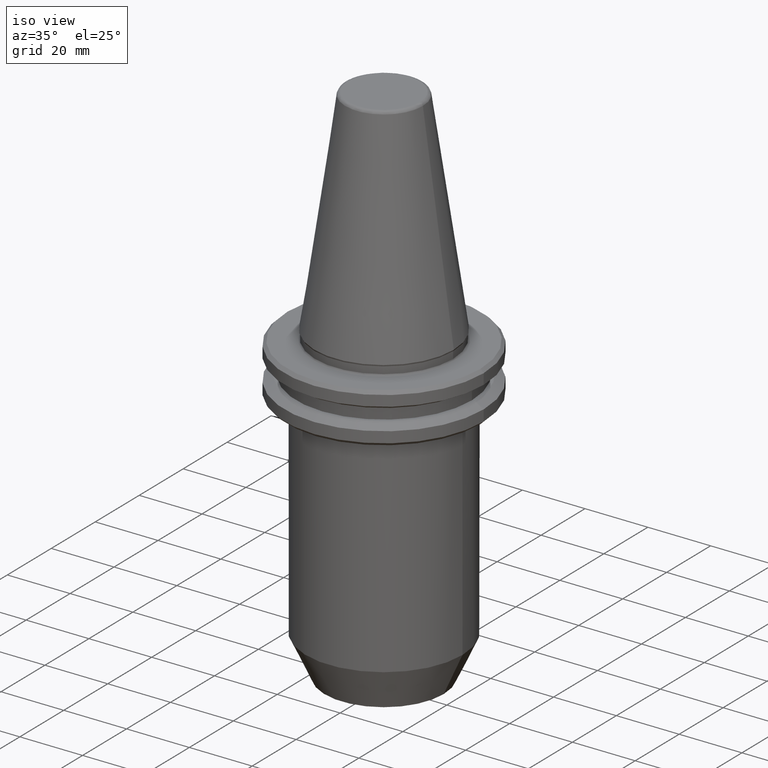
[diagram: clean part render]
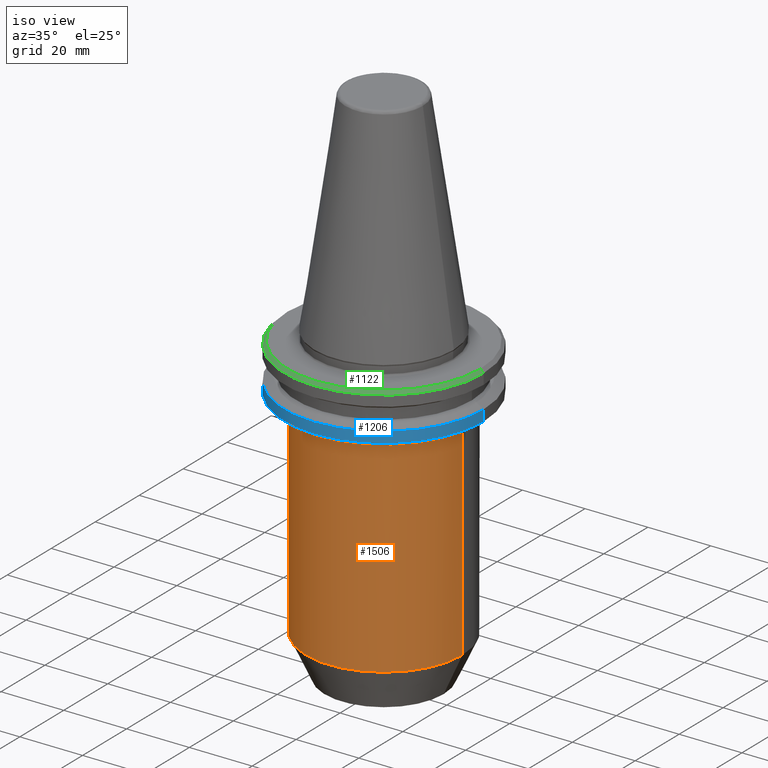
[diagram: same view with three faces highlighted in distinct colors, each labeled with its STEP entity id]
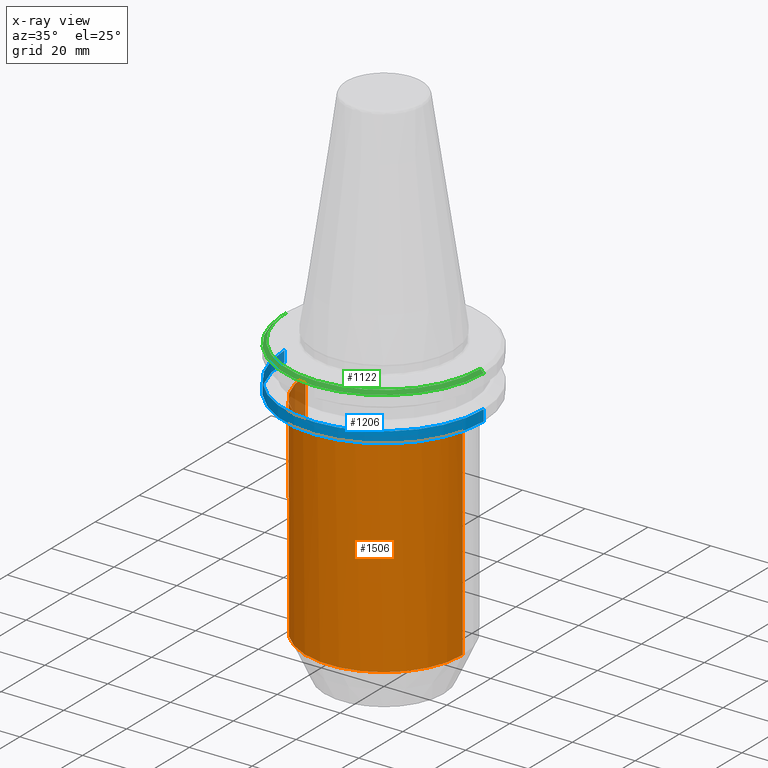
[diagram: x-ray of the same camera — body ghosted, the three highlighted faces saturated]
A machine part, iso view with three faces highlighted in distinct colors.
The next image is the same camera in x-ray (body ghosted, the three faces saturated) — at least one of them is partly hidden behind the body in this view.
Their STEP definitions:

[orange] entity #1506 — the highlighted cylindrical surface (partial cylindrical patch) has radius 25 mm, axis along (0, 0, 1).
#91 = VERTEX_POINT ( 'NONE', #1160 ) ;
#112 = DIRECTION ( 'NONE',  ( 0.0000000000000000000, 0.0000000000000000000, 1.000000000000000000 ) ) ;
#130 = DIRECTION ( 'NONE',  ( 1.000000000000000000, 0.0000000000000000000, 0.0000000000000000000 ) ) ;
#133 = DIRECTION ( 'NONE',  ( -0.0000000000000000000, -0.0000000000000000000, -1.000000000000000000 ) ) ;
#138 = CARTESIAN_POINT ( 'NONE',  ( 0.0000000000000000000, 0.0000000000000000000, -20.10000000000000900 ) ) ;
#243 = DIRECTION ( 'NONE',  ( 1.000000000000000000, 0.0000000000000000000, 0.0000000000000000000 ) ) ;
#258 = CARTESIAN_POINT ( 'NONE',  ( 0.0000000000000000000, 0.0000000000000000000, 82.95681253582424100 ) ) ;
#268 = ORIENTED_EDGE ( 'NONE', *, *, #528, .T. ) ;
#277 = CARTESIAN_POINT ( 'NONE',  ( 25.00000000000000400, 0.0000000000000000000, -20.10000000000000900 ) ) ;
#283 = EDGE_LOOP ( 'NONE', ( #617, #501, #268, #422, #1220 ) ) ;
#334 = LINE ( 'NONE', #1253, #580 ) ;
#346 = EDGE_CURVE ( 'NONE', #91, #798, #1352, .T. ) ;
#422 = ORIENTED_EDGE ( 'NONE', *, *, #1258, .T. ) ;
#455 = AXIS2_PLACEMENT_3D ( 'NONE', #138, #133, #130 ) ;
#485 = AXIS2_PLACEMENT_3D ( 'NONE', #1053, #112, #912 ) ;
#487 = DIRECTION ( 'NONE',  ( 0.0000000000000000000, 0.0000000000000000000, -1.000000000000000000 ) ) ;
#501 = ORIENTED_EDGE ( 'NONE', *, *, #1525, .T. ) ;
#516 = VERTEX_POINT ( 'NONE', #1310 ) ;
#520 = DIRECTION ( 'NONE',  ( -1.000000000000000000, 0.0000000000000000000, 0.0000000000000000000 ) ) ;
#528 = EDGE_CURVE ( 'NONE', #516, #1235, #1527, .T. ) ;
#530 = FACE_OUTER_BOUND ( 'NONE', #283, .T. ) ;
#580 = VECTOR ( 'NONE', #1007, 1000.000000000000000 ) ;
#588 = CARTESIAN_POINT ( 'NONE',  ( 25.00000000000000400, 0.0000000000000000000, 82.95681253582424100 ) ) ;
#617 = ORIENTED_EDGE ( 'NONE', *, *, #1030, .F. ) ;
#683 = CARTESIAN_POINT ( 'NONE',  ( -25.00000000000000400, 3.061616997868383400E-015, -20.10000000000000900 ) ) ;
#798 = VERTEX_POINT ( 'NONE', #683 ) ;
#827 = AXIS2_PLACEMENT_3D ( 'NONE', #910, #487, #520 ) ;
#910 = CARTESIAN_POINT ( 'NONE',  ( 0.0000000000000000000, 0.0000000000000000000, -20.10000000000000900 ) ) ;
#912 = DIRECTION ( 'NONE',  ( 1.000000000000000000, 0.0000000000000000000, 0.0000000000000000000 ) ) ;
#978 = DIRECTION ( 'NONE',  ( 0.0000000000000000000, 0.0000000000000000000, 1.000000000000000000 ) ) ;
#1007 = DIRECTION ( 'NONE',  ( 0.0000000000000000000, 0.0000000000000000000, 1.000000000000000000 ) ) ;
#1013 = VERTEX_POINT ( 'NONE', #1269 ) ;
#1030 = EDGE_CURVE ( 'NONE', #1013, #798, #334, .T. ) ;
#1053 = CARTESIAN_POINT ( 'NONE',  ( 0.0000000000000000000, 0.0000000000000000000, -87.13295847694239200 ) ) ;
#1096 = CYLINDRICAL_SURFACE ( 'NONE', #1238, 25.00000000000000400 ) ;
#1160 = CARTESIAN_POINT ( 'NONE',  ( 23.68960742604233600, -7.987646712267640200, -20.10000000000000900 ) ) ;
#1183 = DIRECTION ( 'NONE',  ( 0.0000000000000000000, 0.0000000000000000000, 1.000000000000000000 ) ) ;
#1220 = ORIENTED_EDGE ( 'NONE', *, *, #346, .T. ) ;
#1235 = VERTEX_POINT ( 'NONE', #277 ) ;
#1238 = AXIS2_PLACEMENT_3D ( 'NONE', #258, #1183, #243 ) ;
#1253 = CARTESIAN_POINT ( 'NONE',  ( -25.00000000000000400, 3.061616997868383400E-015, 82.95681253582424100 ) ) ;
#1258 = EDGE_CURVE ( 'NONE', #1235, #91, #1349, .T. ) ;
#1269 = CARTESIAN_POINT ( 'NONE',  ( -25.00000000000001400, 3.061616997868384600E-015, -87.13295847694239200 ) ) ;
#1310 = CARTESIAN_POINT ( 'NONE',  ( 25.00000000000001400, 0.0000000000000000000, -87.13295847694239200 ) ) ;
#1348 = CIRCLE ( 'NONE', #485, 25.00000000000000400 ) ;
#1349 = CIRCLE ( 'NONE', #827, 25.00000000000000400 ) ;
#1352 = CIRCLE ( 'NONE', #455, 25.00000000000000400 ) ;
#1469 = VECTOR ( 'NONE', #978, 1000.000000000000000 ) ;
#1506 = ADVANCED_FACE ( 'NONE', ( #530 ), #1096, .T. ) ;
#1525 = EDGE_CURVE ( 'NONE', #1013, #516, #1348, .T. ) ;
#1527 = LINE ( 'NONE', #588, #1469 ) ;

[blue] entity #1206 — the highlighted cylindrical surface (partial cylindrical patch) has radius 31.75 mm, axis along (0, 0, 1).
#53 = EDGE_CURVE ( 'NONE', #1312, #430, #868, .T. ) ;
#60 = CARTESIAN_POINT ( 'NONE',  ( -31.74999999999935300, 3.888253587292767600E-015, -18.10000000000066900 ) ) ;
#93 = LINE ( 'NONE', #677, #1416 ) ;
#117 = CARTESIAN_POINT ( 'NONE',  ( 31.74999999999935300, 0.0000000000000000000, -18.10000000000066900 ) ) ;
#144 = FACE_OUTER_BOUND ( 'NONE', #939, .T. ) ;
#186 = VECTOR ( 'NONE', #1500, 1000.000000000000000 ) ;
#210 = CARTESIAN_POINT ( 'NONE',  ( 0.0000000000000000000, 0.0000000000000000000, 113.5216080541959500 ) ) ;
#249 = LINE ( 'NONE', #1219, #186 ) ;
#252 = DIRECTION ( 'NONE',  ( -0.0000000000000000000, -0.0000000000000000000, 1.000000000000000000 ) ) ;
#255 = CARTESIAN_POINT ( 'NONE',  ( 0.0000000000000000000, 0.0000000000000000000, -14.62183664205671200 ) ) ;
#265 = DIRECTION ( 'NONE',  ( -1.000000000000000000, 0.0000000000000000000, 5.463695987328526400E-017 ) ) ;
#270 = CARTESIAN_POINT ( 'NONE',  ( 31.75000000000000000, 3.888253587292846500E-015, -14.62183664205671200 ) ) ;
#347 = AXIS2_PLACEMENT_3D ( 'NONE', #210, #446, #444 ) ;
#430 = VERTEX_POINT ( 'NONE', #60 ) ;
#444 = DIRECTION ( 'NONE',  ( 1.000000000000000000, 0.0000000000000000000, 0.0000000000000000000 ) ) ;
#446 = DIRECTION ( 'NONE',  ( 0.0000000000000000000, 0.0000000000000000000, 1.000000000000000000 ) ) ;
#583 = EDGE_CURVE ( 'NONE', #430, #1046, #93, .T. ) ;
#677 = CARTESIAN_POINT ( 'NONE',  ( -31.75000000000000000, 3.888253587292846500E-015, 113.5216080541959500 ) ) ;
#765 = ORIENTED_EDGE ( 'NONE', *, *, #1048, .T. ) ;
#868 = CIRCLE ( 'NONE', #1156, 31.75000000000005700 ) ;
#870 = DIRECTION ( 'NONE',  ( 0.0000000000000000000, 0.0000000000000000000, 1.000000000000000000 ) ) ;
#878 = ORIENTED_EDGE ( 'NONE', *, *, #583, .F. ) ;
#906 = CIRCLE ( 'NONE', #1309, 31.75000000000000000 ) ;
#939 = EDGE_LOOP ( 'NONE', ( #878, #1378, #765, #1454 ) ) ;
#1046 = VERTEX_POINT ( 'NONE', #1400 ) ;
#1048 = EDGE_CURVE ( 'NONE', #1312, #1256, #249, .T. ) ;
#1156 = AXIS2_PLACEMENT_3D ( 'NONE', #1201, #1198, #1196 ) ;
#1196 = DIRECTION ( 'NONE',  ( -1.000000000000000000, 0.0000000000000000000, 0.0000000000000000000 ) ) ;
#1198 = DIRECTION ( 'NONE',  ( -0.0000000000000000000, -0.0000000000000000000, -1.000000000000000000 ) ) ;
#1201 = CARTESIAN_POINT ( 'NONE',  ( 0.0000000000000000000, 0.0000000000000000000, -18.10000000000066900 ) ) ;
#1206 = ADVANCED_FACE ( 'NONE', ( #144 ), #1329, .T. ) ;
#1219 = CARTESIAN_POINT ( 'NONE',  ( 31.75000000000000000, 0.0000000000000000000, 113.5216080541959500 ) ) ;
#1255 = EDGE_CURVE ( 'NONE', #1046, #1256, #906, .T. ) ;
#1256 = VERTEX_POINT ( 'NONE', #270 ) ;
#1309 = AXIS2_PLACEMENT_3D ( 'NONE', #255, #252, #265 ) ;
#1312 = VERTEX_POINT ( 'NONE', #117 ) ;
#1329 = CYLINDRICAL_SURFACE ( 'NONE', #347, 31.75000000000000000 ) ;
#1378 = ORIENTED_EDGE ( 'NONE', *, *, #53, .F. ) ;
#1400 = CARTESIAN_POINT ( 'NONE',  ( -31.75000000000000000, 0.0000000000000000000, -14.62183664205671200 ) ) ;
#1416 = VECTOR ( 'NONE', #870, 1000.000000000000000 ) ;
#1454 = ORIENTED_EDGE ( 'NONE', *, *, #1255, .F. ) ;
#1500 = DIRECTION ( 'NONE',  ( 0.0000000000000000000, 0.0000000000000000000, 1.000000000000000000 ) ) ;

[green] entity #1122 — the highlighted conical surface has half-angle 45 deg.
#18 = VECTOR ( 'NONE', #1418, 1000.000000000000100 ) ;
#20 = CARTESIAN_POINT ( 'NONE',  ( -30.74999999999994300, 0.0000000000000000000, -3.200000000000036100 ) ) ;
#105 = DIRECTION ( 'NONE',  ( 0.7071067811865408000, 8.659560562354850300E-017, -0.7071067811865543500 ) ) ;
#114 = AXIS2_PLACEMENT_3D ( 'NONE', #1363, #1330, #1452 ) ;
#142 = CARTESIAN_POINT ( 'NONE',  ( 31.63284271247462300, 3.873905957576372200E-015, -4.082842712474625400 ) ) ;
#357 = EDGE_CURVE ( 'NONE', #1108, #601, #987, .T. ) ;
#539 = ORIENTED_EDGE ( 'NONE', *, *, #607, .T. ) ;
#601 = VERTEX_POINT ( 'NONE', #1406 ) ;
#605 = ORIENTED_EDGE ( 'NONE', *, *, #357, .F. ) ;
#607 = EDGE_CURVE ( 'NONE', #1455, #1023, #1451, .T. ) ;
#810 = CONICAL_SURFACE ( 'NONE', #1137, 31.63284271247462300, 0.7853981633974387300 ) ;
#892 = EDGE_LOOP ( 'NONE', ( #605, #1427, #539, #1063 ) ) ;
#928 = EDGE_CURVE ( 'NONE', #601, #1023, #1054, .T. ) ;
#954 = CARTESIAN_POINT ( 'NONE',  ( 30.74999999999994300, 3.827021247335477300E-015, -3.200000000000036100 ) ) ;
#987 = LINE ( 'NONE', #142, #1126 ) ;
#1011 = CARTESIAN_POINT ( 'NONE',  ( 0.0000000000000000000, 0.0000000000000000000, -4.082842712474625400 ) ) ;
#1023 = VERTEX_POINT ( 'NONE', #1263 ) ;
#1054 = CIRCLE ( 'NONE', #114, 31.74999999999994300 ) ;
#1058 = DIRECTION ( 'NONE',  ( -1.000000000000000000, 0.0000000000000000000, 0.0000000000000000000 ) ) ;
#1063 = ORIENTED_EDGE ( 'NONE', *, *, #928, .F. ) ;
#1083 = CARTESIAN_POINT ( 'NONE',  ( 0.0000000000000000000, 0.0000000000000000000, -3.200000000000036100 ) ) ;
#1108 = VERTEX_POINT ( 'NONE', #954 ) ;
#1122 = ADVANCED_FACE ( 'NONE', ( #1232 ), #810, .T. ) ;
#1126 = VECTOR ( 'NONE', #105, 1000.000000000000100 ) ;
#1136 = EDGE_CURVE ( 'NONE', #1108, #1455, #1522, .T. ) ;
#1137 = AXIS2_PLACEMENT_3D ( 'NONE', #1011, #1178, #1443 ) ;
#1178 = DIRECTION ( 'NONE',  ( 0.0000000000000000000, 0.0000000000000000000, -1.000000000000000000 ) ) ;
#1226 = AXIS2_PLACEMENT_3D ( 'NONE', #1083, #1234, #1058 ) ;
#1232 = FACE_OUTER_BOUND ( 'NONE', #892, .T. ) ;
#1234 = DIRECTION ( 'NONE',  ( -0.0000000000000000000, -0.0000000000000000000, -1.000000000000000000 ) ) ;
#1263 = CARTESIAN_POINT ( 'NONE',  ( -31.74999999999994300, 3.888253587292843300E-015, -4.200000000000036600 ) ) ;
#1330 = DIRECTION ( 'NONE',  ( -0.0000000000000000000, -0.0000000000000000000, -1.000000000000000000 ) ) ;
#1363 = CARTESIAN_POINT ( 'NONE',  ( 0.0000000000000000000, 0.0000000000000000000, -4.200000000000036600 ) ) ;
#1406 = CARTESIAN_POINT ( 'NONE',  ( 31.74999999999994300, 0.0000000000000000000, -4.200000000000036600 ) ) ;
#1418 = DIRECTION ( 'NONE',  ( -0.7071067811865408000, 0.0000000000000000000, -0.7071067811865543500 ) ) ;
#1427 = ORIENTED_EDGE ( 'NONE', *, *, #1136, .T. ) ;
#1443 = DIRECTION ( 'NONE',  ( -1.000000000000000000, 0.0000000000000000000, 0.0000000000000000000 ) ) ;
#1450 = CARTESIAN_POINT ( 'NONE',  ( -31.63284271247462300, 0.0000000000000000000, -4.082842712474625400 ) ) ;
#1451 = LINE ( 'NONE', #1450, #18 ) ;
#1452 = DIRECTION ( 'NONE',  ( -1.000000000000000000, 0.0000000000000000000, 0.0000000000000000000 ) ) ;
#1455 = VERTEX_POINT ( 'NONE', #20 ) ;
#1522 = CIRCLE ( 'NONE', #1226, 30.74999999999994300 ) ;